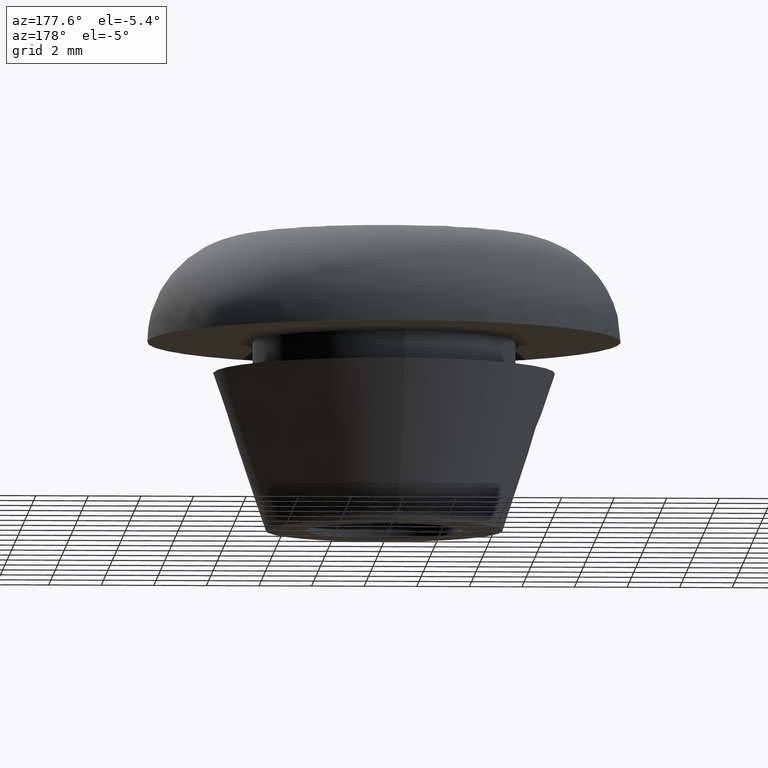
[diagram: clean part render]
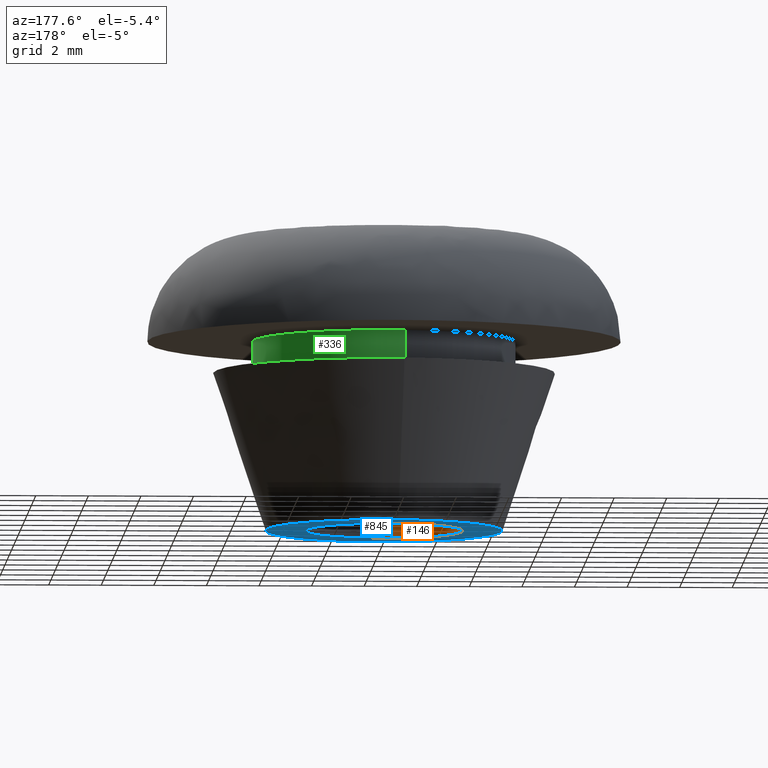
[diagram: same view with three faces highlighted in distinct colors, each labeled with its STEP entity id]
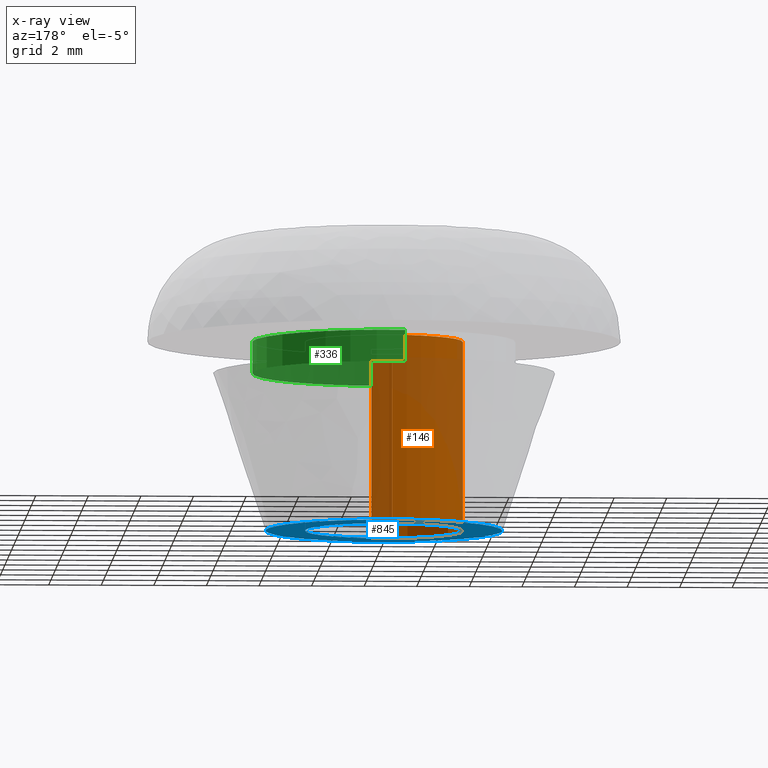
[diagram: x-ray of the same camera — body ghosted, the three highlighted faces saturated]
A machine part, auxiliary view with three faces highlighted in distinct colors.
The next image is the same camera in x-ray (body ghosted, the three faces saturated) — at least one of them is partly hidden behind the body in this view.
Their STEP definitions:

[orange] entity #146 — the highlighted face is a freeform B-spline surface patch.
#44=CARTESIAN_POINT('',(0.354102703970275,-2.979028579091000,7.380000000000003));
#45=CARTESIAN_POINT('',(0.268844185913933,-2.989162846345817,7.380000000000002));
#46=CARTESIAN_POINT('',(0.183145618604571,-2.994404395265600,7.380000000000002));
#47=CARTESIAN_POINT('',(-2.811258776661029,-3.177550013870171,7.380000000000002));
#48=CARTESIAN_POINT('',(-2.994404395265600,-0.183145618604571,7.380000000000002));
#49=CARTESIAN_POINT('',(-3.177550013870171,2.811258776661029,7.380000000000002));
#50=CARTESIAN_POINT('',(-0.183145618604571,2.994404395265600,7.380000000000002));
#51=CARTESIAN_POINT('',(0.354102703970275,-2.979028579091000,-0.184500000000000));
#52=CARTESIAN_POINT('',(0.268844185913933,-2.989162846345817,-0.184500000000000));
#53=CARTESIAN_POINT('',(0.183145618604571,-2.994404395265600,-0.184500000000000));
#54=CARTESIAN_POINT('',(-2.811258776661029,-3.177550013870171,-0.184500000000000));
#55=CARTESIAN_POINT('',(-2.994404395265600,-0.183145618604571,-0.184500000000000));
#56=CARTESIAN_POINT('',(-3.177550013870171,2.811258776661029,-0.184500000000000));
#57=CARTESIAN_POINT('',(-0.183145618604571,2.994404395265600,-0.184500000000000));
#65=(BOUNDED_SURFACE()B_SPLINE_SURFACE(2,1,((#44,#51),(#45,#52),(#46,#53),(#47,#54),(#48,#55),(#49,#56),(#50,#57)),.UNSPECIFIED.,.F.,.F.,.U.)B_SPLINE_SURFACE_WITH_KNOTS((3,2,2,3),(2,2),(0.0,0.198822509939086,5.169385258416225,10.139948006893370),(0.0,7.564500000000002),.UNSPECIFIED.)GEOMETRIC_REPRESENTATION_ITEM()RATIONAL_B_SPLINE_SURFACE(((0.977505800795127,0.977505800795127),(0.988284271247462,0.988284271247462),(1.0,1.0),(0.707106781186548,0.707106781186548),(1.0,1.0),(0.707106781186548,0.707106781186548),(1.0,1.0)))REPRESENTATION_ITEM('')SURFACE());
#66=CARTESIAN_POINT('',(0.354102703981138,-2.979028579089708,7.200000000000001));
#67=VERTEX_POINT('',#66);
#68=CARTESIAN_POINT('',(-3.0,0.0,7.200000000000000));
#69=VERTEX_POINT('',#68);
#70=CARTESIAN_POINT('',(0.354102703981138,-2.979028579089708,7.200000000000002));
#71=CARTESIAN_POINT('',(0.177672358966708,-3.0,7.200000000000000));
#72=CARTESIAN_POINT('',(0.0,-3.0,7.200000000000000));
#73=CARTESIAN_POINT('',(-3.0,-3.0,7.200000000000000));
#74=CARTESIAN_POINT('',(-3.0,0.0,7.200000000000000));
#82=(BOUNDED_CURVE()B_SPLINE_CURVE(2,(#70,#71,#72,#73,#74),.UNSPECIFIED.,.F.,.U.)B_SPLINE_CURVE_WITH_KNOTS((3,2,3),(0.229562473514412,0.250000000000000,0.500000000000000),.UNSPECIFIED.)CURVE()GEOMETRIC_REPRESENTATION_ITEM()RATIONAL_B_SPLINE_CURVE((0.956026754185470,0.976055948332203,1.0,0.707106781186548,1.0))REPRESENTATION_ITEM(''));
#83=EDGE_CURVE('',#67,#69,#82,.T.);
#84=ORIENTED_EDGE('',*,*,#83,.F.);
#85=CARTESIAN_POINT('',(0.354097191598257,-2.979029234309628,-2.555485E-016));
#86=VERTEX_POINT('',#85);
#87=CARTESIAN_POINT('',(0.354102703981138,-2.979028579089708,7.200000000000001));
#88=CARTESIAN_POINT('',(0.354097191598257,-2.979029234309628,-2.555485E-016));
#89=QUASI_UNIFORM_CURVE('',1,(#87,#88),.UNSPECIFIED.,.F.,.U.);
#90=EDGE_CURVE('',#67,#86,#89,.T.);
#91=ORIENTED_EDGE('',*,*,#90,.T.);
#92=CARTESIAN_POINT('',(-3.0,0.0,0.0));
#93=VERTEX_POINT('',#92);
#94=CARTESIAN_POINT('',(0.354097191598257,-2.979029234309628,-2.555485E-016));
#95=CARTESIAN_POINT('',(0.177669573632440,-3.000000000000000,0.0));
#96=CARTESIAN_POINT('',(0.0,-3.0,0.0));
#97=CARTESIAN_POINT('',(-3.0,-3.0,0.0));
#98=CARTESIAN_POINT('',(-3.0,0.0,0.0));
#106=(BOUNDED_CURVE()B_SPLINE_CURVE(2,(#94,#95,#96,#97,#98),.UNSPECIFIED.,.F.,.U.)B_SPLINE_CURVE_WITH_KNOTS((3,2,3),(0.229562786238015,0.250000000000000,0.500000000000000),.UNSPECIFIED.)CURVE()GEOMETRIC_REPRESENTATION_ITEM()RATIONAL_B_SPLINE_CURVE((0.956027367137448,0.976056314710695,1.0,0.707106781186548,1.0))REPRESENTATION_ITEM(''));
#107=EDGE_CURVE('',#86,#93,#106,.T.);
#108=ORIENTED_EDGE('',*,*,#107,.T.);
#109=CARTESIAN_POINT('',(-0.183145618620295,2.994404395264639,1.526557E-016));
#110=VERTEX_POINT('',#109);
#111=CARTESIAN_POINT('',(-3.0,0.0,0.0));
#112=CARTESIAN_POINT('',(-3.0,2.822118200687374,0.0));
#113=CARTESIAN_POINT('',(-0.183145618620295,2.994404395264639,1.526557E-016));
#121=(BOUNDED_CURVE()B_SPLINE_CURVE(2,(#111,#112,#113),.UNSPECIFIED.,.F.,.U.)B_SPLINE_CURVE_WITH_KNOTS((3,3),(0.500000000000000,0.739332962240155),.UNSPECIFIED.)CURVE()GEOMETRIC_REPRESENTATION_ITEM()RATIONAL_B_SPLINE_CURVE((1.0,0.719603993285290,0.976072041669316))REPRESENTATION_ITEM(''));
#122=EDGE_CURVE('',#93,#110,#121,.T.);
#123=ORIENTED_EDGE('',*,*,#122,.T.);
#124=CARTESIAN_POINT('',(-0.183145618620296,2.994404395264639,7.200000000000000));
#125=VERTEX_POINT('',#124);
#126=CARTESIAN_POINT('',(-0.183145618620296,2.994404395264639,7.200000000000000));
#127=CARTESIAN_POINT('',(-0.183145618620295,2.994404395264639,1.526557E-016));
#128=QUASI_UNIFORM_CURVE('',1,(#126,#127),.UNSPECIFIED.,.F.,.U.);
#129=EDGE_CURVE('',#125,#110,#128,.T.);
#130=ORIENTED_EDGE('',*,*,#129,.F.);
#131=CARTESIAN_POINT('',(-3.0,0.0,7.200000000000000));
#132=CARTESIAN_POINT('',(-3.0,2.822118200687374,7.200000000000000));
#133=CARTESIAN_POINT('',(-0.183145618620296,2.994404395264639,7.200000000000000));
#141=(BOUNDED_CURVE()B_SPLINE_CURVE(2,(#131,#132,#133),.UNSPECIFIED.,.F.,.U.)B_SPLINE_CURVE_WITH_KNOTS((3,3),(0.500000000000000,0.739332962240155),.UNSPECIFIED.)CURVE()GEOMETRIC_REPRESENTATION_ITEM()RATIONAL_B_SPLINE_CURVE((1.0,0.719603993285290,0.976072041669316))REPRESENTATION_ITEM(''));
#142=EDGE_CURVE('',#69,#125,#141,.T.);
#143=ORIENTED_EDGE('',*,*,#142,.F.);
#144=EDGE_LOOP('',(#84,#91,#108,#123,#130,#143));
#145=FACE_OUTER_BOUND('',#144,.T.);
#146=ADVANCED_FACE('',(#145),#65,.F.);

[blue] entity #845 — the highlighted face is a freeform B-spline surface patch.
#85=CARTESIAN_POINT('',(0.354097191598257,-2.979029234309628,-2.555485E-016));
#86=VERTEX_POINT('',#85);
#92=CARTESIAN_POINT('',(-3.0,0.0,0.0));
#93=VERTEX_POINT('',#92);
#94=CARTESIAN_POINT('',(0.354097191598257,-2.979029234309628,-2.555485E-016));
#95=CARTESIAN_POINT('',(0.177669573632440,-3.000000000000000,0.0));
#96=CARTESIAN_POINT('',(0.0,-3.0,0.0));
#97=CARTESIAN_POINT('',(-3.0,-3.0,0.0));
#98=CARTESIAN_POINT('',(-3.0,0.0,0.0));
#106=(BOUNDED_CURVE()B_SPLINE_CURVE(2,(#94,#95,#96,#97,#98),.UNSPECIFIED.,.F.,.U.)B_SPLINE_CURVE_WITH_KNOTS((3,2,3),(0.229562786238015,0.250000000000000,0.500000000000000),.UNSPECIFIED.)CURVE()GEOMETRIC_REPRESENTATION_ITEM()RATIONAL_B_SPLINE_CURVE((0.956027367137448,0.976056314710695,1.0,0.707106781186548,1.0))REPRESENTATION_ITEM(''));
#107=EDGE_CURVE('',#86,#93,#106,.T.);
#109=CARTESIAN_POINT('',(-0.183145618620295,2.994404395264639,1.526557E-016));
#110=VERTEX_POINT('',#109);
#111=CARTESIAN_POINT('',(-3.0,0.0,0.0));
#112=CARTESIAN_POINT('',(-3.0,2.822118200687374,0.0));
#113=CARTESIAN_POINT('',(-0.183145618620295,2.994404395264639,1.526557E-016));
#121=(BOUNDED_CURVE()B_SPLINE_CURVE(2,(#111,#112,#113),.UNSPECIFIED.,.F.,.U.)B_SPLINE_CURVE_WITH_KNOTS((3,3),(0.500000000000000,0.739332962240155),.UNSPECIFIED.)CURVE()GEOMETRIC_REPRESENTATION_ITEM()RATIONAL_B_SPLINE_CURVE((1.0,0.719603993285290,0.976072041669316))REPRESENTATION_ITEM(''));
#122=EDGE_CURVE('',#93,#110,#121,.T.);
#200=CARTESIAN_POINT('',(3.0,0.0,0.0));
#201=VERTEX_POINT('',#200);
#202=CARTESIAN_POINT('',(-0.183145618620295,2.994404395264639,1.526557E-016));
#203=CARTESIAN_POINT('',(-0.091658289911535,3.0,0.0));
#204=CARTESIAN_POINT('',(0.0,3.0,0.0));
#205=CARTESIAN_POINT('',(3.0,3.0,0.0));
#206=CARTESIAN_POINT('',(3.0,0.0,0.0));
#214=(BOUNDED_CURVE()B_SPLINE_CURVE(2,(#202,#203,#204,#205,#206),.UNSPECIFIED.,.F.,.U.)B_SPLINE_CURVE_WITH_KNOTS((3,2,3),(0.739332962240156,0.750000000000000,1.0),.UNSPECIFIED.)CURVE()GEOMETRIC_REPRESENTATION_ITEM()RATIONAL_B_SPLINE_CURVE((0.976072041669318,0.987502787901259,1.0,0.707106781186548,1.0))REPRESENTATION_ITEM(''));
#215=EDGE_CURVE('',#110,#201,#214,.T.);
#217=CARTESIAN_POINT('',(3.0,0.0,0.0));
#218=CARTESIAN_POINT('',(3.000000000000001,-2.664528542979987,0.0));
#219=CARTESIAN_POINT('',(0.354097191598257,-2.979029234309628,-2.555485E-016));
#227=(BOUNDED_CURVE()B_SPLINE_CURVE(2,(#217,#218,#219),.UNSPECIFIED.,.F.,.U.)B_SPLINE_CURVE_WITH_KNOTS((3,3),(0.0,0.229562786238015),.UNSPECIFIED.)CURVE()GEOMETRIC_REPRESENTATION_ITEM()RATIONAL_B_SPLINE_CURVE((1.0,0.731050466475852,0.956027367137448))REPRESENTATION_ITEM(''));
#228=EDGE_CURVE('',#201,#86,#227,.T.);
#438=CARTESIAN_POINT('',(-4.500000000000000,0.0,0.0));
#439=VERTEX_POINT('',#438);
#440=CARTESIAN_POINT('',(-0.353063810381927,4.486127613227898,-0.000001661209573));
#441=VERTEX_POINT('',#440);
#442=CARTESIAN_POINT('',(-4.500000000000000,0.0,0.0));
#443=CARTESIAN_POINT('',(-4.499999978277276,4.159758868250054,-0.000000830604787));
#444=CARTESIAN_POINT('',(-0.353063810381927,4.486127613227898,-0.000001661209573));
#452=(BOUNDED_CURVE()B_SPLINE_CURVE(2,(#442,#443,#444),.UNSPECIFIED.,.F.,.U.)B_SPLINE_CURVE_WITH_KNOTS((3,3),(0.0,0.236331379997369),.UNSPECIFIED.)CURVE()GEOMETRIC_REPRESENTATION_ITEM()RATIONAL_B_SPLINE_CURVE((1.0,0.723120565623782,0.969723521799744))REPRESENTATION_ITEM(''));
#453=EDGE_CURVE('',#439,#441,#452,.T.);
#455=CARTESIAN_POINT('',(0.353063810381927,-4.486127613227898,-0.000001661209573));
#456=VERTEX_POINT('',#455);
#457=CARTESIAN_POINT('',(0.353063810381927,-4.486127613227898,-0.000001661209573));
#458=CARTESIAN_POINT('',(0.176804395584852,-4.499999457994607,-0.000001631042669));
#459=CARTESIAN_POINT('',(-0.000000041803015,-4.499999468839202,-0.000001598408310));
#460=CARTESIAN_POINT('',(-4.500000020080290,-4.499999744854223,-0.000000767803524));
#461=CARTESIAN_POINT('',(-4.500000000000000,0.0,0.0));
#469=(BOUNDED_CURVE()B_SPLINE_CURVE(2,(#457,#458,#459,#460,#461),.UNSPECIFIED.,.F.,.U.)B_SPLINE_CURVE_WITH_KNOTS((3,2,3),(0.736331379997369,0.750000000000000,1.0),.UNSPECIFIED.)CURVE()GEOMETRIC_REPRESENTATION_ITEM()RATIONAL_B_SPLINE_CURVE((0.969723521799744,0.983986215562766,1.0,0.707106781186547,1.0))REPRESENTATION_ITEM(''));
#470=EDGE_CURVE('',#456,#439,#469,.T.);
#537=CARTESIAN_POINT('',(4.500000000000000,0.0,0.0));
#538=VERTEX_POINT('',#537);
#539=CARTESIAN_POINT('',(-0.353063810381927,4.486127613227898,-0.000001661209573));
#540=CARTESIAN_POINT('',(-0.176804395584851,4.499999457994605,-0.000001631042669));
#541=CARTESIAN_POINT('',(0.000000041803015,4.499999468839201,-0.000001598408310));
#542=CARTESIAN_POINT('',(4.500000020080290,4.499999744854223,-0.000000767803524));
#543=CARTESIAN_POINT('',(4.500000000000000,0.0,0.0));
#551=(BOUNDED_CURVE()B_SPLINE_CURVE(2,(#539,#540,#541,#542,#543),.UNSPECIFIED.,.F.,.U.)B_SPLINE_CURVE_WITH_KNOTS((3,2,3),(0.236331379997369,0.250000000000000,0.500000000000000),.UNSPECIFIED.)CURVE()GEOMETRIC_REPRESENTATION_ITEM()RATIONAL_B_SPLINE_CURVE((0.969723521799744,0.983986215562766,1.0,0.707106781186547,1.0))REPRESENTATION_ITEM(''));
#552=EDGE_CURVE('',#441,#538,#551,.T.);
#586=CARTESIAN_POINT('',(4.500000000000000,0.0,0.0));
#587=CARTESIAN_POINT('',(4.499999978277277,-4.159758868250052,-0.000000830604787));
#588=CARTESIAN_POINT('',(0.353063810381927,-4.486127613227898,-0.000001661209573));
#596=(BOUNDED_CURVE()B_SPLINE_CURVE(2,(#586,#587,#588),.UNSPECIFIED.,.F.,.U.)B_SPLINE_CURVE_WITH_KNOTS((3,3),(0.500000000000000,0.736331379997369),.UNSPECIFIED.)CURVE()GEOMETRIC_REPRESENTATION_ITEM()RATIONAL_B_SPLINE_CURVE((1.0,0.723120565623782,0.969723521799744))REPRESENTATION_ITEM(''));
#597=EDGE_CURVE('',#538,#456,#596,.T.);
#828=CARTESIAN_POINT('',(4.949549982556253,-4.948175848203142,0.0));
#829=CARTESIAN_POINT('',(-4.949550223955065,-4.948175848203142,0.0));
#830=CARTESIAN_POINT('',(4.949549982556253,4.948175928669413,0.0));
#831=CARTESIAN_POINT('',(-4.949550223955065,4.948175928669413,0.0));
#832=B_SPLINE_SURFACE_WITH_KNOTS('',1,1,((#828,#830),(#829,#831)),.UNSPECIFIED.,.F.,.F.,.U.,(2,2),(2,2),(0.0,9.899100206511317),(0.0,9.896351776872555),.UNSPECIFIED.);
#833=ORIENTED_EDGE('',*,*,#453,.T.);
#834=ORIENTED_EDGE('',*,*,#552,.T.);
#835=ORIENTED_EDGE('',*,*,#597,.T.);
#836=ORIENTED_EDGE('',*,*,#470,.T.);
#837=EDGE_LOOP('',(#833,#834,#835,#836));
#838=FACE_OUTER_BOUND('',#837,.T.);
#839=ORIENTED_EDGE('',*,*,#122,.F.);
#840=ORIENTED_EDGE('',*,*,#107,.F.);
#841=ORIENTED_EDGE('',*,*,#228,.F.);
#842=ORIENTED_EDGE('',*,*,#215,.F.);
#843=EDGE_LOOP('',(#839,#840,#841,#842));
#844=FACE_BOUND('',#843,.T.);
#845=ADVANCED_FACE('',(#838,#844),#832,.T.);

[green] entity #336 — the highlighted face is a freeform B-spline surface patch.
#234=CARTESIAN_POINT('',(-0.590171173283792,4.965047631818332,7.230000000000002));
#235=CARTESIAN_POINT('',(-0.448073643189888,4.981938077243028,7.230000000000001));
#236=CARTESIAN_POINT('',(-0.305242697674285,4.990673992109334,7.230000000000001));
#237=CARTESIAN_POINT('',(4.685431294435048,5.295916689783620,7.230000000000002));
#238=CARTESIAN_POINT('',(4.990673992109334,0.305242697674285,7.230000000000001));
#239=CARTESIAN_POINT('',(5.295916689783620,-4.685431294435048,7.230000000000002));
#240=CARTESIAN_POINT('',(0.305242697674285,-4.990673992109334,7.230000000000001));
#241=CARTESIAN_POINT('',(-0.590171173283792,4.965047631818332,5.969249999999999));
#242=CARTESIAN_POINT('',(-0.448073643189888,4.981938077243028,5.969249999999998));
#243=CARTESIAN_POINT('',(-0.305242697674285,4.990673992109334,5.969249999999999));
#244=CARTESIAN_POINT('',(4.685431294435048,5.295916689783620,5.969249999999999));
#245=CARTESIAN_POINT('',(4.990673992109334,0.305242697674285,5.969249999999999));
#246=CARTESIAN_POINT('',(5.295916689783620,-4.685431294435048,5.969249999999999));
#247=CARTESIAN_POINT('',(0.305242697674285,-4.990673992109334,5.969249999999999));
#255=(BOUNDED_SURFACE()B_SPLINE_SURFACE(2,1,((#234,#241),(#235,#242),(#236,#243),(#237,#244),(#238,#245),(#239,#246),(#240,#247)),.UNSPECIFIED.,.F.,.F.,.U.)B_SPLINE_SURFACE_WITH_KNOTS((3,2,2,3),(2,2),(0.0,0.331370849898476,8.615642097360375,16.899913344822270),(0.0,1.0),.UNSPECIFIED.)GEOMETRIC_REPRESENTATION_ITEM()RATIONAL_B_SPLINE_SURFACE(((0.977505800795127,0.977505800795127),(0.988284271247462,0.988284271247462),(1.0,1.0),(0.707106781186548,0.707106781186548),(1.0,1.0),(0.707106781186548,0.707106781186548),(1.0,1.0)))REPRESENTATION_ITEM('')SURFACE());
#256=CARTESIAN_POINT('',(-0.590169455614432,4.965047835988770,7.200000000000022));
#257=VERTEX_POINT('',#256);
#258=CARTESIAN_POINT('',(5.0,0.0,7.200000000000000));
#259=VERTEX_POINT('',#258);
#260=CARTESIAN_POINT('',(-0.590169455614432,4.965047835988770,7.200000000000023));
#261=CARTESIAN_POINT('',(-0.296119730345424,4.999999999999999,7.200000000000000));
#262=CARTESIAN_POINT('',(0.0,5.0,7.200000000000000));
#263=CARTESIAN_POINT('',(5.000000000000001,5.000000000000001,7.200000000000000));
#264=CARTESIAN_POINT('',(5.0,0.0,7.200000000000000));
#272=(BOUNDED_CURVE()B_SPLINE_CURVE(2,(#260,#261,#262,#263,#264),.UNSPECIFIED.,.F.,.U.)B_SPLINE_CURVE_WITH_KNOTS((3,2,3),(0.229562531982699,0.250000000000000,0.500000000000000),.UNSPECIFIED.)CURVE()GEOMETRIC_REPRESENTATION_ITEM()RATIONAL_B_SPLINE_CURVE((0.956026868785737,0.976056016832063,1.0,0.707106781186548,1.0))REPRESENTATION_ITEM(''));
#273=EDGE_CURVE('',#257,#259,#272,.T.);
#274=ORIENTED_EDGE('',*,*,#273,.T.);
#275=CARTESIAN_POINT('',(0.305237013104272,-4.990674339786032,7.199999999999904));
#276=VERTEX_POINT('',#275);
#277=CARTESIAN_POINT('',(5.0,0.0,7.200000000000000));
#278=CARTESIAN_POINT('',(4.999999999999999,-4.703535702044791,7.199999999999999));
#279=CARTESIAN_POINT('',(0.305237013104272,-4.990674339786032,7.199999999999904));
#287=(BOUNDED_CURVE()B_SPLINE_CURVE(2,(#277,#278,#279),.UNSPECIFIED.,.F.,.U.)B_SPLINE_CURVE_WITH_KNOTS((3,3),(0.500000000000000,0.739333158779441),.UNSPECIFIED.)CURVE()GEOMETRIC_REPRESENTATION_ITEM()RATIONAL_B_SPLINE_CURVE((1.0,0.719603763025194,0.976072462890779))REPRESENTATION_ITEM(''));
#288=EDGE_CURVE('',#259,#276,#287,.T.);
#289=ORIENTED_EDGE('',*,*,#288,.T.);
#290=CARTESIAN_POINT('',(0.305237081557413,-4.990674335599413,6.0));
#291=VERTEX_POINT('',#290);
#292=CARTESIAN_POINT('',(0.305237013104272,-4.990674339786032,7.199999999999904));
#293=CARTESIAN_POINT('',(0.305237081557413,-4.990674335599413,6.0));
#294=QUASI_UNIFORM_CURVE('',1,(#292,#293),.UNSPECIFIED.,.F.,.U.);
#295=EDGE_CURVE('',#276,#291,#294,.T.);
#296=ORIENTED_EDGE('',*,*,#295,.T.);
#297=CARTESIAN_POINT('',(5.0,0.0,6.0));
#298=VERTEX_POINT('',#297);
#299=CARTESIAN_POINT('',(5.0,0.0,6.0));
#300=CARTESIAN_POINT('',(4.999999999999999,-4.703535637409559,6.0));
#301=CARTESIAN_POINT('',(0.305237081557413,-4.990674335599414,6.000000000000001));
#309=(BOUNDED_CURVE()B_SPLINE_CURVE(2,(#299,#300,#301),.UNSPECIFIED.,.F.,.U.)B_SPLINE_CURVE_WITH_KNOTS((3,3),(0.500000000000000,0.739333156412752),.UNSPECIFIED.)CURVE()GEOMETRIC_REPRESENTATION_ITEM()RATIONAL_B_SPLINE_CURVE((1.0,0.719603765797943,0.976072457818505))REPRESENTATION_ITEM(''));
#310=EDGE_CURVE('',#298,#291,#309,.T.);
#311=ORIENTED_EDGE('',*,*,#310,.F.);
#312=CARTESIAN_POINT('',(-0.590169476332178,4.965047833526166,6.0));
#313=VERTEX_POINT('',#312);
#314=CARTESIAN_POINT('',(-0.590169476332178,4.965047833526166,6.000000000000001));
#315=CARTESIAN_POINT('',(-0.296119740813809,5.0,6.0));
#316=CARTESIAN_POINT('',(0.0,5.0,6.0));
#317=CARTESIAN_POINT('',(5.000000000000001,5.000000000000001,6.0));
#318=CARTESIAN_POINT('',(5.0,0.0,6.0));
#326=(BOUNDED_CURVE()B_SPLINE_CURVE(2,(#314,#315,#316,#317,#318),.UNSPECIFIED.,.F.,.U.)B_SPLINE_CURVE_WITH_KNOTS((3,2,3),(0.229562531277496,0.250000000000000,0.500000000000000),.UNSPECIFIED.)CURVE()GEOMETRIC_REPRESENTATION_ITEM()RATIONAL_B_SPLINE_CURVE((0.956026867403510,0.976056016005866,1.0,0.707106781186548,1.0))REPRESENTATION_ITEM(''));
#327=EDGE_CURVE('',#313,#298,#326,.T.);
#328=ORIENTED_EDGE('',*,*,#327,.F.);
#329=CARTESIAN_POINT('',(-0.590169455614432,4.965047835988770,7.200000000000022));
#330=CARTESIAN_POINT('',(-0.590169476332178,4.965047833526166,6.0));
#331=QUASI_UNIFORM_CURVE('',1,(#329,#330),.UNSPECIFIED.,.F.,.U.);
#332=EDGE_CURVE('',#257,#313,#331,.T.);
#333=ORIENTED_EDGE('',*,*,#332,.F.);
#334=EDGE_LOOP('',(#274,#289,#296,#311,#328,#333));
#335=FACE_OUTER_BOUND('',#334,.T.);
#336=ADVANCED_FACE('',(#335),#255,.T.);